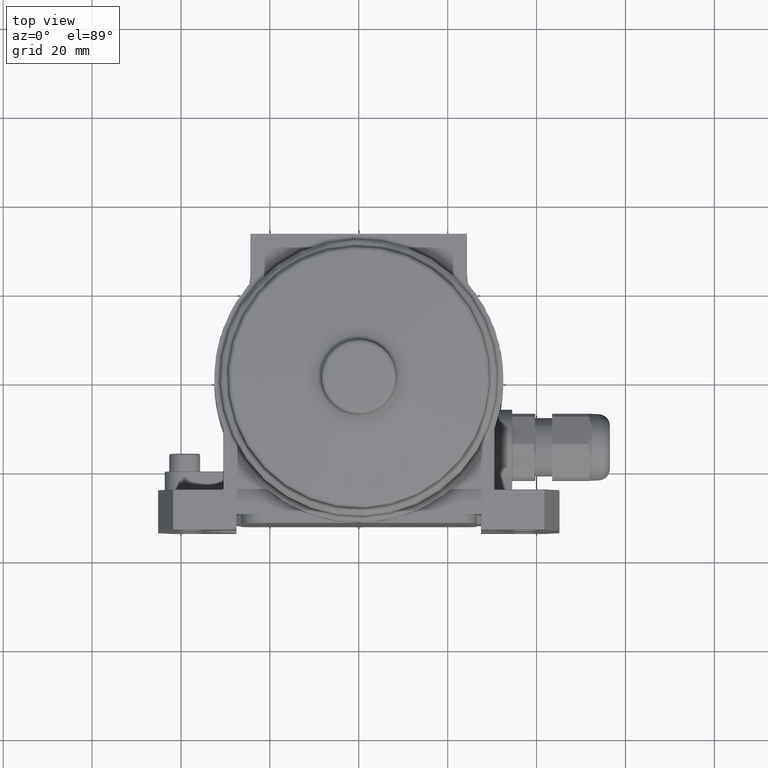
[diagram: clean part render]
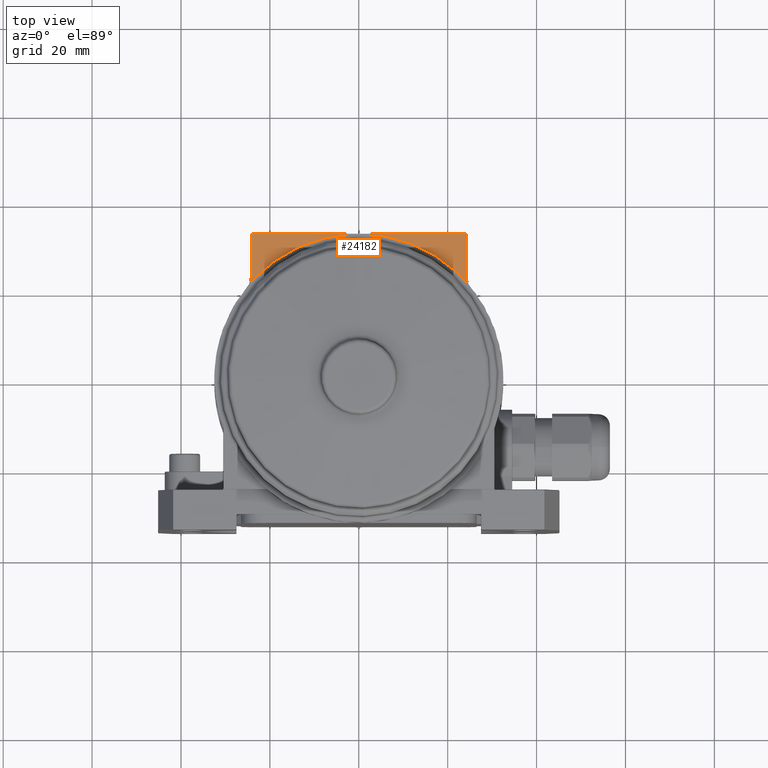
[diagram: same view with one face highlighted and labeled with its STEP entity id]
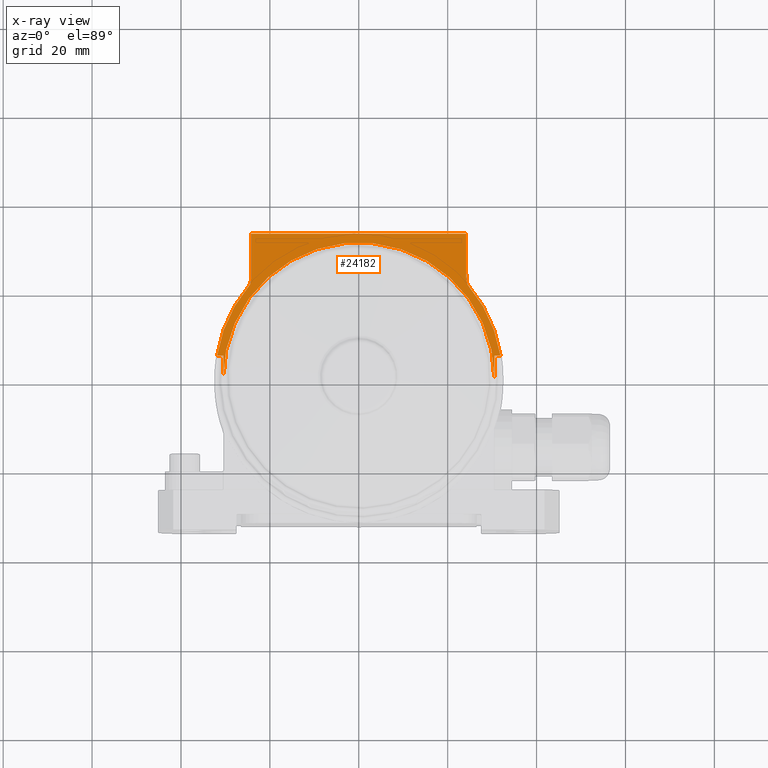
[diagram: x-ray of the same camera — body ghosted, the highlighted face saturated]
A machine part, top view. The second image highlights one B-rep face of the part: STEP entity #24182.
The next image is the same camera in x-ray: the body ghosted, the highlighted face saturated — about 0% of this face is hidden behind the body in this view.
In plain terms, the highlighted planar face has unit normal (0, 0, -1).
Its self-contained STEP definition (entity closure, byte-faithful):
#30 = VERTEX_POINT ( 'NONE', #22380 ) ;
#38 = DIRECTION ( 'NONE',  ( -1.000000000000000000, 0.0000000000000000000, 0.0000000000000000000 ) ) ;
#220 = DIRECTION ( 'NONE',  ( -0.0000000000000000000, -0.0000000000000000000, 1.000000000000000000 ) ) ;
#668 = ORIENTED_EDGE ( 'NONE', *, *, #13922, .T. ) ;
#1115 = VERTEX_POINT ( 'NONE', #8516 ) ;
#1354 = ORIENTED_EDGE ( 'NONE', *, *, #24005, .F. ) ;
#1593 = EDGE_LOOP ( 'NONE', ( #17088, #21529, #20169, #2195, #15633, #21357, #1849, #17405, #6555, #668, #1354, #16644, #17150, #21311 ) ) ;
#1849 = ORIENTED_EDGE ( 'NONE', *, *, #9341, .T. ) ;
#1878 = DIRECTION ( 'NONE',  ( -1.000000000000000000, -1.776409035511031000E-015, 0.0000000000000000000 ) ) ;
#2195 = ORIENTED_EDGE ( 'NONE', *, *, #10620, .T. ) ;
#2224 = CARTESIAN_POINT ( 'NONE',  ( 24.52622913183575200, 20.99544672589815200, 31.50000000000000000 ) ) ;
#3155 = DIRECTION ( 'NONE',  ( 0.0000000000000000000, 0.0000000000000000000, -1.000000000000000000 ) ) ;
#3172 = CIRCLE ( 'NONE', #6170, 30.50000000000000000 ) ;
#3217 = CARTESIAN_POINT ( 'NONE',  ( -34.35000000000000100, 23.58141989636135000, 31.50000000000000000 ) ) ;
#3763 = CARTESIAN_POINT ( 'NONE',  ( 32.10957012714434500, 5.000000000000000000, 31.50000000000000000 ) ) ;
#3809 = CARTESIAN_POINT ( 'NONE',  ( 0.0000000000000000000, -0.02249999999999475000, 31.50000000000000000 ) ) ;
#3931 = AXIS2_PLACEMENT_3D ( 'NONE', #16271, #10900, #12867 ) ;
#4257 = EDGE_CURVE ( 'NONE', #6169, #24524, #18056, .T. ) ;
#4264 = AXIS2_PLACEMENT_3D ( 'NONE', #22969, #24854, #13341 ) ;
#4442 = DIRECTION ( 'NONE',  ( -3.899972697564344900E-016, 1.000000000000000000, 0.0000000000000000000 ) ) ;
#4546 = DIRECTION ( 'NONE',  ( 0.0000000000000000000, 0.0000000000000000000, -1.000000000000000000 ) ) ;
#4806 = LINE ( 'NONE', #11894, #22256 ) ;
#4986 = VERTEX_POINT ( 'NONE', #17820 ) ;
#4994 = VERTEX_POINT ( 'NONE', #21688 ) ;
#5003 = DIRECTION ( 'NONE',  ( 0.0000000000000000000, 1.000000000000000000, 0.0000000000000000000 ) ) ;
#5066 = EDGE_CURVE ( 'NONE', #4986, #10959, #6558, .T. ) ;
#5170 = CARTESIAN_POINT ( 'NONE',  ( 34.35000000000000100, 23.58141989636135000, 31.50000000000000000 ) ) ;
#5356 = LINE ( 'NONE', #3763, #21583 ) ;
#5470 = DIRECTION ( 'NONE',  ( -1.000000000000000000, 0.0000000000000000000, 0.0000000000000000000 ) ) ;
#6141 = CARTESIAN_POINT ( 'NONE',  ( -30.50000000000000000, 5.000000000000000000, 31.50000000000000000 ) ) ;
#6169 = VERTEX_POINT ( 'NONE', #12956 ) ;
#6170 = AXIS2_PLACEMENT_3D ( 'NONE', #21477, #21564, #9964 ) ;
#6360 = CARTESIAN_POINT ( 'NONE',  ( 24.15000000000000200, 23.58141989636135000, 31.50000000000000000 ) ) ;
#6555 = ORIENTED_EDGE ( 'NONE', *, *, #13762, .T. ) ;
#6558 = LINE ( 'NONE', #16521, #21943 ) ;
#7105 = CIRCLE ( 'NONE', #17457, 32.30000000000000400 ) ;
#8056 = CARTESIAN_POINT ( 'NONE',  ( -24.15000000000000200, 32.47749999999999900, 31.50000000000000000 ) ) ;
#8394 = VECTOR ( 'NONE', #20015, 1000.000000000000000 ) ;
#8516 = CARTESIAN_POINT ( 'NONE',  ( 24.15000000000000200, 32.47749999999999900, 31.50000000000000000 ) ) ;
#8726 = DIRECTION ( 'NONE',  ( -1.000000000000000000, -1.424824210247889700E-016, 0.0000000000000000000 ) ) ;
#8788 = VECTOR ( 'NONE', #23757, 1000.000000000000000 ) ;
#9341 = EDGE_CURVE ( 'NONE', #10250, #1115, #13271, .T. ) ;
#9342 = CARTESIAN_POINT ( 'NONE',  ( -32.10957012714434500, 5.000000000000000000, 31.50000000000000000 ) ) ;
#9964 = DIRECTION ( 'NONE',  ( 1.000000000000000000, 0.0000000000000000000, 0.0000000000000000000 ) ) ;
#10250 = VERTEX_POINT ( 'NONE', #12097 ) ;
#10491 = VERTEX_POINT ( 'NONE', #13184 ) ;
#10592 = AXIS2_PLACEMENT_3D ( 'NONE', #3809, #220, #1878 ) ;
#10620 = EDGE_CURVE ( 'NONE', #10491, #11586, #7105, .T. ) ;
#10900 = DIRECTION ( 'NONE',  ( -0.0000000000000000000, -0.0000000000000000000, 1.000000000000000000 ) ) ;
#10959 = VERTEX_POINT ( 'NONE', #6141 ) ;
#11578 = EDGE_CURVE ( 'NONE', #15828, #4986, #3172, .T. ) ;
#11586 = VERTEX_POINT ( 'NONE', #2224 ) ;
#11744 = EDGE_CURVE ( 'NONE', #16292, #10250, #15192, .T. ) ;
#11894 = CARTESIAN_POINT ( 'NONE',  ( -24.35000000000000100, 32.47749999999999900, 31.50000000000000000 ) ) ;
#12097 = CARTESIAN_POINT ( 'NONE',  ( 24.15000000000000200, 23.58141989636135000, 31.50000000000000000 ) ) ;
#12182 = AXIS2_PLACEMENT_3D ( 'NONE', #5170, #3155, #24280 ) ;
#12754 = CARTESIAN_POINT ( 'NONE',  ( 24.82995952356125000, 21.25573089587830100, 31.50000000000000000 ) ) ;
#12867 = DIRECTION ( 'NONE',  ( -1.000000000000000000, -1.734723475976802700E-014, 0.0000000000000000000 ) ) ;
#12887 = DIRECTION ( 'NONE',  ( -1.000000000000000000, 0.0000000000000000000, 0.0000000000000000000 ) ) ;
#12956 = CARTESIAN_POINT ( 'NONE',  ( -24.52622913183575200, 20.99544672589815200, 31.50000000000000000 ) ) ;
#13184 = CARTESIAN_POINT ( 'NONE',  ( 31.90712293125160000, 5.000000000000000000, 31.50000000000000000 ) ) ;
#13271 = LINE ( 'NONE', #6360, #18317 ) ;
#13341 = DIRECTION ( 'NONE',  ( -1.000000000000000000, 0.0000000000000000000, 0.0000000000000000000 ) ) ;
#13633 = CIRCLE ( 'NONE', #18143, 10.20000000000000100 ) ;
#13762 = EDGE_CURVE ( 'NONE', #18321, #30, #22327, .T. ) ;
#13922 = EDGE_CURVE ( 'NONE', #30, #18643, #13633, .T. ) ;
#14096 = FACE_OUTER_BOUND ( 'NONE', #1593, .T. ) ;
#14114 = CARTESIAN_POINT ( 'NONE',  ( -24.15000000000000200, 23.58141989636140000, 31.50000000000000000 ) ) ;
#14971 = EDGE_CURVE ( 'NONE', #1115, #18321, #4806, .T. ) ;
#15173 = PLANE ( 'NONE',  #4264 ) ;
#15192 = CIRCLE ( 'NONE', #12182, 10.20000000000000100 ) ;
#15633 = ORIENTED_EDGE ( 'NONE', *, *, #23071, .F. ) ;
#15828 = VERTEX_POINT ( 'NONE', #16126 ) ;
#16126 = CARTESIAN_POINT ( 'NONE',  ( 30.50000000000000000, 0.0000000000000000000, 31.50000000000000000 ) ) ;
#16151 = EDGE_CURVE ( 'NONE', #10491, #4994, #5356, .T. ) ;
#16240 = CARTESIAN_POINT ( 'NONE',  ( 30.50000000000000000, 5.000000000000000000, 31.50000000000000000 ) ) ;
#16271 = CARTESIAN_POINT ( 'NONE',  ( -24.82995952356125000, 21.25573089587830100, 31.50000000000000000 ) ) ;
#16292 = VERTEX_POINT ( 'NONE', #16309 ) ;
#16309 = CARTESIAN_POINT ( 'NONE',  ( 24.44138644289029800, 21.16080481422594800, 31.50000000000000000 ) ) ;
#16521 = CARTESIAN_POINT ( 'NONE',  ( -30.50000000000000000, 5.000000000000000000, 31.50000000000000000 ) ) ;
#16644 = ORIENTED_EDGE ( 'NONE', *, *, #4257, .T. ) ;
#17088 = ORIENTED_EDGE ( 'NONE', *, *, #11578, .F. ) ;
#17150 = ORIENTED_EDGE ( 'NONE', *, *, #24512, .F. ) ;
#17324 = CARTESIAN_POINT ( 'NONE',  ( -31.90712293125160000, 5.000000000000000000, 31.50000000000000000 ) ) ;
#17405 = ORIENTED_EDGE ( 'NONE', *, *, #14971, .T. ) ;
#17457 = AXIS2_PLACEMENT_3D ( 'NONE', #19091, #21108, #38 ) ;
#17812 = CARTESIAN_POINT ( 'NONE',  ( -24.44138644289029800, 21.16080481422594800, 31.50000000000000000 ) ) ;
#17820 = CARTESIAN_POINT ( 'NONE',  ( -30.50000000000000000, 0.0000000000000000000, 31.50000000000000000 ) ) ;
#18056 = CIRCLE ( 'NONE', #10592, 32.30000000000000400 ) ;
#18143 = AXIS2_PLACEMENT_3D ( 'NONE', #3217, #4546, #20346 ) ;
#18244 = AXIS2_PLACEMENT_3D ( 'NONE', #12754, #24749, #5470 ) ;
#18317 = VECTOR ( 'NONE', #4442, 1000.000000000000000 ) ;
#18321 = VERTEX_POINT ( 'NONE', #8056 ) ;
#18548 = CIRCLE ( 'NONE', #3931, 0.4000000000000010200 ) ;
#18643 = VERTEX_POINT ( 'NONE', #17812 ) ;
#18664 = DIRECTION ( 'NONE',  ( -1.000000000000000000, 0.0000000000000000000, 0.0000000000000000000 ) ) ;
#19091 = CARTESIAN_POINT ( 'NONE',  ( 0.0000000000000000000, -0.02249999999999475000, 31.50000000000000000 ) ) ;
#19881 = EDGE_CURVE ( 'NONE', #4994, #15828, #22536, .T. ) ;
#20015 = DIRECTION ( 'NONE',  ( 0.0000000000000000000, -1.000000000000000000, 0.0000000000000000000 ) ) ;
#20169 = ORIENTED_EDGE ( 'NONE', *, *, #16151, .F. ) ;
#20346 = DIRECTION ( 'NONE',  ( -1.000000000000000000, 0.0000000000000000000, 0.0000000000000000000 ) ) ;
#20457 = VECTOR ( 'NONE', #18664, 1000.000000000000000 ) ;
#21108 = DIRECTION ( 'NONE',  ( -0.0000000000000000000, -0.0000000000000000000, 1.000000000000000000 ) ) ;
#21311 = ORIENTED_EDGE ( 'NONE', *, *, #5066, .F. ) ;
#21357 = ORIENTED_EDGE ( 'NONE', *, *, #11744, .T. ) ;
#21477 = CARTESIAN_POINT ( 'NONE',  ( 0.0000000000000000000, 0.0000000000000000000, 31.50000000000000000 ) ) ;
#21529 = ORIENTED_EDGE ( 'NONE', *, *, #19881, .F. ) ;
#21564 = DIRECTION ( 'NONE',  ( 0.0000000000000000000, 0.0000000000000000000, 1.000000000000000000 ) ) ;
#21583 = VECTOR ( 'NONE', #12887, 1000.000000000000000 ) ;
#21688 = CARTESIAN_POINT ( 'NONE',  ( 30.50000000000000000, 5.000000000000000000, 31.50000000000000000 ) ) ;
#21943 = VECTOR ( 'NONE', #5003, 1000.000000000000000 ) ;
#22212 = CIRCLE ( 'NONE', #18244, 0.4000000000000010200 ) ;
#22256 = VECTOR ( 'NONE', #8726, 1000.000000000000000 ) ;
#22327 = LINE ( 'NONE', #14114, #8788 ) ;
#22380 = CARTESIAN_POINT ( 'NONE',  ( -24.15000000000000200, 23.58141989636135000, 31.50000000000000000 ) ) ;
#22536 = LINE ( 'NONE', #16240, #8394 ) ;
#22568 = LINE ( 'NONE', #9342, #20457 ) ;
#22969 = CARTESIAN_POINT ( 'NONE',  ( 34.35000000000000100, 23.58141989636135000, 31.50000000000000000 ) ) ;
#23071 = EDGE_CURVE ( 'NONE', #16292, #11586, #22212, .T. ) ;
#23757 = DIRECTION ( 'NONE',  ( -3.899972697564344900E-016, -1.000000000000000000, 0.0000000000000000000 ) ) ;
#24005 = EDGE_CURVE ( 'NONE', #6169, #18643, #18548, .T. ) ;
#24182 = ADVANCED_FACE ( 'NONE', ( #14096 ), #15173, .F. ) ;
#24280 = DIRECTION ( 'NONE',  ( -1.000000000000000000, 0.0000000000000000000, 0.0000000000000000000 ) ) ;
#24512 = EDGE_CURVE ( 'NONE', #10959, #24524, #22568, .T. ) ;
#24524 = VERTEX_POINT ( 'NONE', #17324 ) ;
#24749 = DIRECTION ( 'NONE',  ( -0.0000000000000000000, -0.0000000000000000000, 1.000000000000000000 ) ) ;
#24854 = DIRECTION ( 'NONE',  ( 0.0000000000000000000, 0.0000000000000000000, -1.000000000000000000 ) ) ;